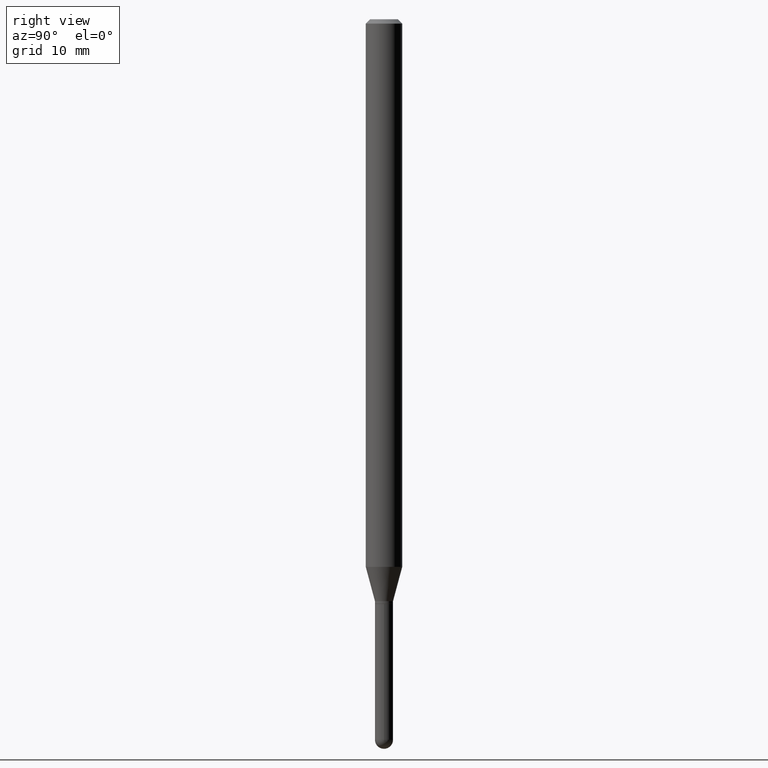
[diagram: clean part render]
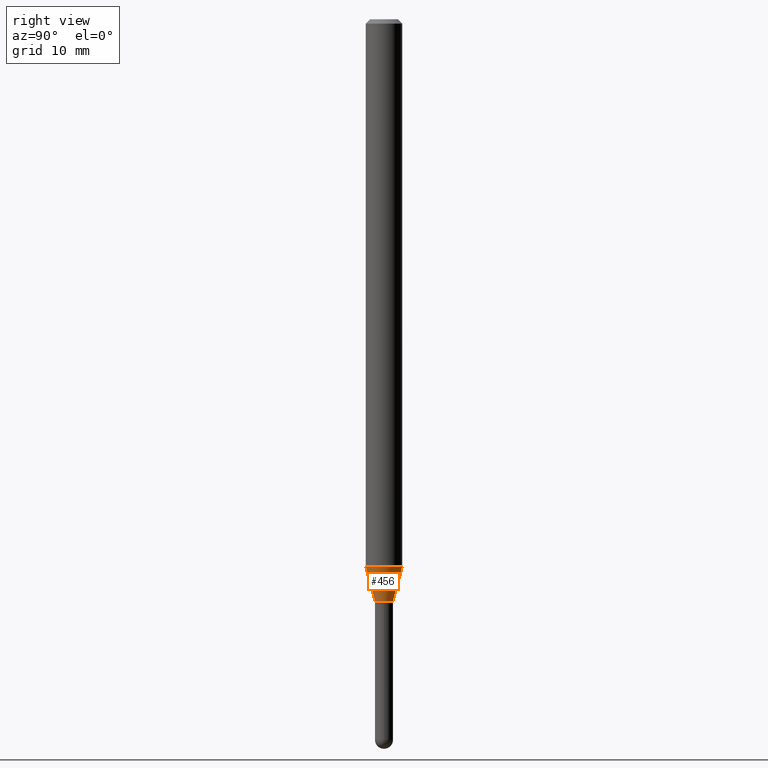
[diagram: same view with one face highlighted and labeled with its STEP entity id]
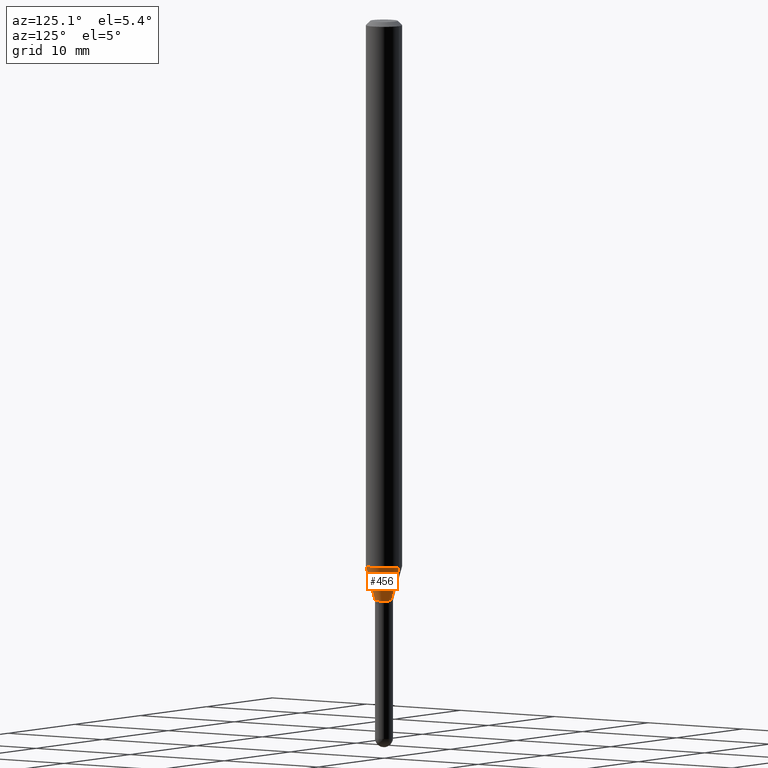
[diagram: same view with one face highlighted and labeled with its STEP entity id]
A machine part, right view. The second image highlights one B-rep face of the part: STEP entity #456.
A second angle (auxiliary view) of the same face is appended — the face is thin or edge-on in the first view.
In plain terms, the highlighted conical surface has half-angle 15 deg.
Its self-contained STEP definition (entity closure, byte-faithful):
#2 = DIRECTION ( 'NONE',  ( -1.807323732225332900E-15, -0.2588190451025185745, 0.9659258262890687563 ) ) ;
#47 = CARTESIAN_POINT ( 'NONE',  ( 2.202682480856811734E-16, 0.03099999999999323436, -1.993999999999999995 ) ) ;
#55 = VERTEX_POINT ( 'NONE', #158 ) ;
#57 = ORIENTED_EDGE ( 'NONE', *, *, #462, .T. ) ;
#81 = VECTOR ( 'NONE', #2, 39.37007874015748854 ) ;
#93 = CARTESIAN_POINT ( 'NONE',  ( 4.876302527951425860E-29, -6.961959760410912195E-15, -1.993999999999999995 ) ) ;
#100 = CONICAL_SURFACE ( 'NONE', #466, 0.03100000000000019407, 0.2617993877991507401 ) ;
#101 = DIRECTION ( 'NONE',  ( -6.982962677686266711E-15, -1.000000000000000000, 0.000000000000000000 ) ) ;
#129 = EDGE_CURVE ( 'NONE', #243, #55, #511, .T. ) ;
#132 = CARTESIAN_POINT ( 'NONE',  ( 4.440892098501081729E-16, 0.06249999999999341499, -1.876440399561582151 ) ) ;
#156 = EDGE_CURVE ( 'NONE', #420, #505, #408, .T. ) ;
#158 = CARTESIAN_POINT ( 'NONE',  ( -4.364351673553459155E-16, -0.06250000000000656419, -1.876440399561581485 ) ) ;
#167 = ORIENTED_EDGE ( 'NONE', *, *, #393, .F. ) ;
#172 = AXIS2_PLACEMENT_3D ( 'NONE', #426, #303, #257 ) ;
#199 = CARTESIAN_POINT ( 'NONE',  ( -2.164718430082268516E-16, -0.03100000000000715725, -1.993999999999999995 ) ) ;
#204 = DIRECTION ( 'NONE',  ( 1.839019923739603471E-15, 0.2588190451025254024, 0.9659258262890670910 ) ) ;
#214 = VECTOR ( 'NONE', #204, 39.37007874015748143 ) ;
#243 = VERTEX_POINT ( 'NONE', #356 ) ;
#257 = DIRECTION ( 'NONE',  ( -6.982962677686266711E-15, -1.000000000000000000, 0.000000000000000000 ) ) ;
#297 = DIRECTION ( 'NONE',  ( -2.445487727157184273E-29, 3.491454242934258452E-15, 1.000000000000000000 ) ) ;
#303 = DIRECTION ( 'NONE',  ( -2.445487727157184273E-29, 3.491454242934258452E-15, 1.000000000000000000 ) ) ;
#311 = DIRECTION ( 'NONE',  ( -6.982962677686265922E-15, -1.000000000000000000, 4.370956789862821150E-15 ) ) ;
#315 = DIRECTION ( 'NONE',  ( -2.445487727157184273E-29, 3.491454242934258452E-15, 1.000000000000000000 ) ) ;
#350 = CARTESIAN_POINT ( 'NONE',  ( 3.321787289678948580E-16, 0.03099999999999323436, -1.993999999999999995 ) ) ;
#356 = CARTESIAN_POINT ( 'NONE',  ( -2.164718430082268516E-16, -0.03100000000000715725, -1.993999999999999995 ) ) ;
#359 = CIRCLE ( 'NONE', #421, 0.06250000000000000000 ) ;
#371 = CARTESIAN_POINT ( 'NONE',  ( 4.588811967869771303E-29, -6.551505794662540099E-15, -1.876440399561581707 ) ) ;
#374 = EDGE_LOOP ( 'NONE', ( #57, #377, #167, #487 ) ) ;
#377 = ORIENTED_EDGE ( 'NONE', *, *, #156, .T. ) ;
#393 = EDGE_CURVE ( 'NONE', #55, #505, #359, .T. ) ;
#408 = LINE ( 'NONE', #47, #214 ) ;
#420 = VERTEX_POINT ( 'NONE', #350 ) ;
#421 = AXIS2_PLACEMENT_3D ( 'NONE', #371, #315, #311 ) ;
#426 = CARTESIAN_POINT ( 'NONE',  ( 4.876302527951425860E-29, -6.961959760410912195E-15, -1.993999999999999995 ) ) ;
#441 = CIRCLE ( 'NONE', #172, 0.03100000000000019407 ) ;
#456 = ADVANCED_FACE ( 'NONE', ( #499 ), #100, .T. ) ;
#462 = EDGE_CURVE ( 'NONE', #243, #420, #441, .T. ) ;
#466 = AXIS2_PLACEMENT_3D ( 'NONE', #93, #297, #101 ) ;
#487 = ORIENTED_EDGE ( 'NONE', *, *, #129, .F. ) ;
#499 = FACE_OUTER_BOUND ( 'NONE', #374, .T. ) ;
#505 = VERTEX_POINT ( 'NONE', #132 ) ;
#511 = LINE ( 'NONE', #199, #81 ) ;